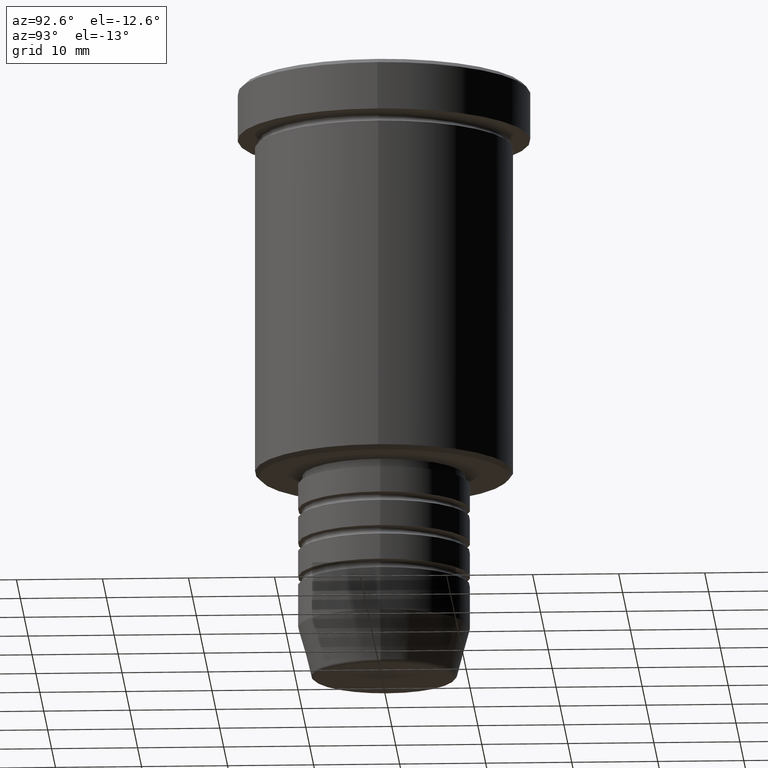
[diagram: clean part render]
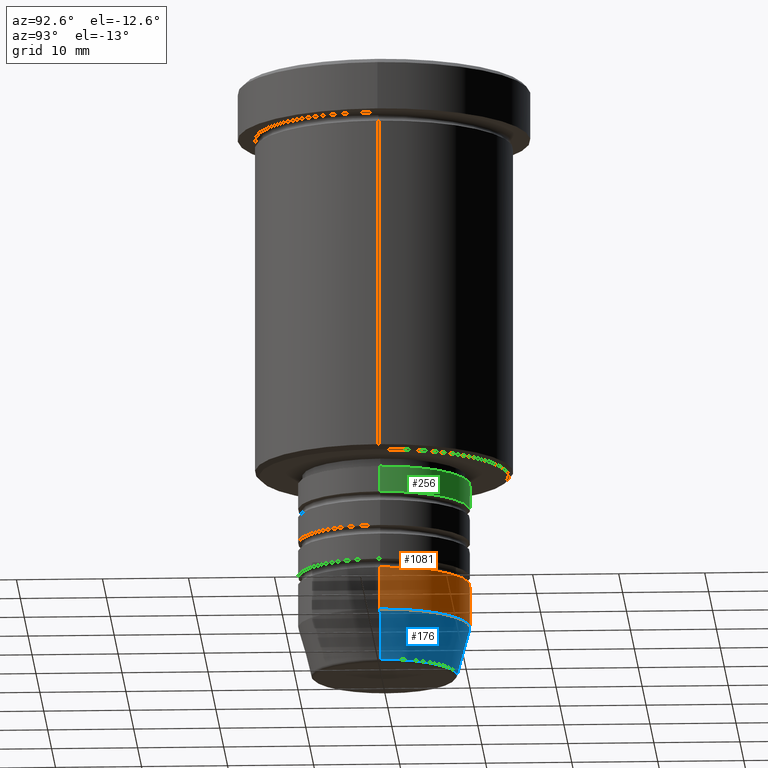
[diagram: same view with three faces highlighted in distinct colors, each labeled with its STEP entity id]
A machine part, auxiliary view with three faces highlighted in distinct colors.
Their STEP definitions:

[orange] entity #1081 — the highlighted cylindrical surface (partial cylindrical patch) has radius 10 mm, axis along (-0, -0, 1).
#8 = VERTEX_POINT ( 'NONE', #234 ) ;
#81 = ORIENTED_EDGE ( 'NONE', *, *, #139, .T. ) ;
#84 = LINE ( 'NONE', #439, #1108 ) ;
#92 = CYLINDRICAL_SURFACE ( 'NONE', #147, 10.00000000000000178 ) ;
#139 = EDGE_CURVE ( 'NONE', #1054, #441, #999, .T. ) ;
#141 = VERTEX_POINT ( 'NONE', #626 ) ;
#147 = AXIS2_PLACEMENT_3D ( 'NONE', #1182, #1088, #365 ) ;
#177 = CARTESIAN_POINT ( 'NONE',  ( -10.00000000000000178, 1.224646799147353454E-15, 0.000000000000000000 ) ) ;
#193 = EDGE_CURVE ( 'NONE', #8, #1054, #630, .T. ) ;
#234 = CARTESIAN_POINT ( 'NONE',  ( 10.00000000000000178, 0.000000000000000000, -64.00000000000000000 ) ) ;
#365 = DIRECTION ( 'NONE',  ( 1.000000000000000000, 0.000000000000000000, 0.000000000000000000 ) ) ;
#372 = CARTESIAN_POINT ( 'NONE',  ( -10.00000000000000178, 1.224646799147353454E-15, -64.00000000000000000 ) ) ;
#439 = CARTESIAN_POINT ( 'NONE',  ( 10.00000000000000178, 0.000000000000000000, 0.000000000000000000 ) ) ;
#441 = VERTEX_POINT ( 'NONE', #858 ) ;
#538 = DIRECTION ( 'NONE',  ( -0.000000000000000000, -0.000000000000000000, 1.000000000000000000 ) ) ;
#554 = CARTESIAN_POINT ( 'NONE',  ( 0.000000000000000000, 0.000000000000000000, -59.00000000000000711 ) ) ;
#559 = ORIENTED_EDGE ( 'NONE', *, *, #193, .T. ) ;
#603 = CARTESIAN_POINT ( 'NONE',  ( 0.000000000000000000, 0.000000000000000000, -64.00000000000000000 ) ) ;
#626 = CARTESIAN_POINT ( 'NONE',  ( 10.00000000000000000, 0.000000000000000000, -59.00000000000000711 ) ) ;
#630 = CIRCLE ( 'NONE', #1072, 10.00000000000000178 ) ;
#636 = ORIENTED_EDGE ( 'NONE', *, *, #720, .F. ) ;
#672 = EDGE_CURVE ( 'NONE', #8, #141, #84, .T. ) ;
#720 = EDGE_CURVE ( 'NONE', #141, #441, #850, .T. ) ;
#750 = AXIS2_PLACEMENT_3D ( 'NONE', #554, #847, #1051 ) ;
#770 = EDGE_LOOP ( 'NONE', ( #559, #81, #636, #930 ) ) ;
#788 = VECTOR ( 'NONE', #538, 1000.000000000000000 ) ;
#811 = FACE_OUTER_BOUND ( 'NONE', #770, .T. ) ;
#822 = DIRECTION ( 'NONE',  ( -0.000000000000000000, -0.000000000000000000, 1.000000000000000000 ) ) ;
#847 = DIRECTION ( 'NONE',  ( -0.000000000000000000, -0.000000000000000000, 1.000000000000000000 ) ) ;
#850 = CIRCLE ( 'NONE', #750, 10.00000000000000000 ) ;
#858 = CARTESIAN_POINT ( 'NONE',  ( -10.00000000000000000, 1.224646799147353256E-15, -59.00000000000000711 ) ) ;
#930 = ORIENTED_EDGE ( 'NONE', *, *, #672, .F. ) ;
#977 = DIRECTION ( 'NONE',  ( 1.000000000000000000, 0.000000000000000000, 0.000000000000000000 ) ) ;
#999 = LINE ( 'NONE', #177, #788 ) ;
#1051 = DIRECTION ( 'NONE',  ( 1.000000000000000000, 0.000000000000000000, 0.000000000000000000 ) ) ;
#1054 = VERTEX_POINT ( 'NONE', #372 ) ;
#1072 = AXIS2_PLACEMENT_3D ( 'NONE', #603, #822, #977 ) ;
#1081 = ADVANCED_FACE ( 'NONE', ( #811 ), #92, .T. ) ;
#1088 = DIRECTION ( 'NONE',  ( -0.000000000000000000, -0.000000000000000000, 1.000000000000000000 ) ) ;
#1108 = VECTOR ( 'NONE', #1179, 1000.000000000000000 ) ;
#1179 = DIRECTION ( 'NONE',  ( -0.000000000000000000, -0.000000000000000000, 1.000000000000000000 ) ) ;
#1182 = CARTESIAN_POINT ( 'NONE',  ( 0.000000000000000000, 0.000000000000000000, 0.000000000000000000 ) ) ;

[blue] entity #176 — the highlighted conical surface has half-angle 15 deg.
#8 = VERTEX_POINT ( 'NONE', #234 ) ;
#39 = CARTESIAN_POINT ( 'NONE',  ( 10.00000000000000178, 0.000000000000000000, -64.00000000000000000 ) ) ;
#115 = DIRECTION ( 'NONE',  ( 1.000000000000000000, 0.000000000000000000, 0.000000000000000000 ) ) ;
#158 = DIRECTION ( 'NONE',  ( -0.2588190451025214056, 3.169619151431772953E-17, 0.9659258262890680902 ) ) ;
#176 = ADVANCED_FACE ( 'NONE', ( #343 ), #246, .T. ) ;
#183 = DIRECTION ( 'NONE',  ( -0.000000000000000000, -0.000000000000000000, 1.000000000000000000 ) ) ;
#193 = EDGE_CURVE ( 'NONE', #8, #1054, #630, .T. ) ;
#234 = CARTESIAN_POINT ( 'NONE',  ( 10.00000000000000178, 0.000000000000000000, -64.00000000000000000 ) ) ;
#246 = CONICAL_SURFACE ( 'NONE', #1160, 10.00000000000000178, 0.2617993877991501295 ) ;
#260 = DIRECTION ( 'NONE',  ( 0.2588190451025214056, 0.000000000000000000, 0.9659258262890680902 ) ) ;
#290 = CARTESIAN_POINT ( 'NONE',  ( 8.491604264568312743, 0.000000000000000000, -69.62940952255127058 ) ) ;
#305 = CIRCLE ( 'NONE', #430, 8.491604264568312743 ) ;
#310 = EDGE_CURVE ( 'NONE', #1177, #411, #305, .T. ) ;
#316 = LINE ( 'NONE', #670, #791 ) ;
#339 = EDGE_LOOP ( 'NONE', ( #1063, #693, #988, #805 ) ) ;
#343 = FACE_OUTER_BOUND ( 'NONE', #339, .T. ) ;
#372 = CARTESIAN_POINT ( 'NONE',  ( -10.00000000000000178, 1.224646799147353454E-15, -64.00000000000000000 ) ) ;
#411 = VERTEX_POINT ( 'NONE', #1135 ) ;
#430 = AXIS2_PLACEMENT_3D ( 'NONE', #565, #934, #115 ) ;
#477 = EDGE_CURVE ( 'NONE', #1177, #8, #698, .T. ) ;
#517 = EDGE_CURVE ( 'NONE', #411, #1054, #316, .T. ) ;
#565 = CARTESIAN_POINT ( 'NONE',  ( 0.000000000000000000, 0.000000000000000000, -69.62940952255127058 ) ) ;
#603 = CARTESIAN_POINT ( 'NONE',  ( 0.000000000000000000, 0.000000000000000000, -64.00000000000000000 ) ) ;
#615 = CARTESIAN_POINT ( 'NONE',  ( 0.000000000000000000, 0.000000000000000000, -64.00000000000000000 ) ) ;
#630 = CIRCLE ( 'NONE', #1072, 10.00000000000000178 ) ;
#670 = CARTESIAN_POINT ( 'NONE',  ( -10.00000000000000178, 1.224646799147353454E-15, -64.00000000000000000 ) ) ;
#693 = ORIENTED_EDGE ( 'NONE', *, *, #517, .T. ) ;
#698 = LINE ( 'NONE', #39, #731 ) ;
#731 = VECTOR ( 'NONE', #260, 1000.000000000000000 ) ;
#791 = VECTOR ( 'NONE', #158, 1000.000000000000000 ) ;
#805 = ORIENTED_EDGE ( 'NONE', *, *, #477, .F. ) ;
#822 = DIRECTION ( 'NONE',  ( -0.000000000000000000, -0.000000000000000000, 1.000000000000000000 ) ) ;
#886 = DIRECTION ( 'NONE',  ( 1.000000000000000000, 0.000000000000000000, 0.000000000000000000 ) ) ;
#934 = DIRECTION ( 'NONE',  ( -0.000000000000000000, -0.000000000000000000, 1.000000000000000000 ) ) ;
#977 = DIRECTION ( 'NONE',  ( 1.000000000000000000, 0.000000000000000000, 0.000000000000000000 ) ) ;
#988 = ORIENTED_EDGE ( 'NONE', *, *, #193, .F. ) ;
#1054 = VERTEX_POINT ( 'NONE', #372 ) ;
#1063 = ORIENTED_EDGE ( 'NONE', *, *, #310, .T. ) ;
#1072 = AXIS2_PLACEMENT_3D ( 'NONE', #603, #822, #977 ) ;
#1135 = CARTESIAN_POINT ( 'NONE',  ( -8.491604264568312743, 1.132284198685156781E-15, -69.62940952255127058 ) ) ;
#1160 = AXIS2_PLACEMENT_3D ( 'NONE', #615, #183, #886 ) ;
#1177 = VERTEX_POINT ( 'NONE', #290 ) ;

[green] entity #256 — the highlighted cylindrical surface (partial cylindrical patch) has radius 10 mm, axis along (-0, -0, 1).
#17 = DIRECTION ( 'NONE',  ( -0.000000000000000000, -0.000000000000000000, 1.000000000000000000 ) ) ;
#31 = DIRECTION ( 'NONE',  ( -0.000000000000000000, -0.000000000000000000, 1.000000000000000000 ) ) ;
#59 = ORIENTED_EDGE ( 'NONE', *, *, #539, .T. ) ;
#62 = VERTEX_POINT ( 'NONE', #972 ) ;
#99 = ORIENTED_EDGE ( 'NONE', *, *, #497, .F. ) ;
#110 = VECTOR ( 'NONE', #944, 1000.000000000000000 ) ;
#209 = ORIENTED_EDGE ( 'NONE', *, *, #690, .T. ) ;
#210 = CARTESIAN_POINT ( 'NONE',  ( -10.00000000000000000, 1.224646799147353256E-15, 0.000000000000000000 ) ) ;
#217 = LINE ( 'NONE', #573, #110 ) ;
#249 = CARTESIAN_POINT ( 'NONE',  ( -10.00000000000000178, 1.224646799147353454E-15, -49.99999999999999289 ) ) ;
#256 = ADVANCED_FACE ( 'NONE', ( #381 ), #457, .T. ) ;
#335 = AXIS2_PLACEMENT_3D ( 'NONE', #1178, #1014, #610 ) ;
#355 = AXIS2_PLACEMENT_3D ( 'NONE', #1130, #363, #646 ) ;
#363 = DIRECTION ( 'NONE',  ( -0.000000000000000000, -0.000000000000000000, 1.000000000000000000 ) ) ;
#381 = FACE_OUTER_BOUND ( 'NONE', #728, .T. ) ;
#404 = LINE ( 'NONE', #210, #653 ) ;
#421 = VERTEX_POINT ( 'NONE', #580 ) ;
#455 = CARTESIAN_POINT ( 'NONE',  ( 0.000000000000000000, 0.000000000000000000, -49.99999999999999289 ) ) ;
#457 = CYLINDRICAL_SURFACE ( 'NONE', #355, 10.00000000000000000 ) ;
#495 = VERTEX_POINT ( 'NONE', #1037 ) ;
#497 = EDGE_CURVE ( 'NONE', #495, #421, #217, .T. ) ;
#530 = DIRECTION ( 'NONE',  ( 1.000000000000000000, 0.000000000000000000, 0.000000000000000000 ) ) ;
#539 = EDGE_CURVE ( 'NONE', #495, #986, #632, .T. ) ;
#573 = CARTESIAN_POINT ( 'NONE',  ( 10.00000000000000000, 0.000000000000000000, 0.000000000000000000 ) ) ;
#580 = CARTESIAN_POINT ( 'NONE',  ( 9.999999999999998224, 0.000000000000000000, -47.00000000000000000 ) ) ;
#610 = DIRECTION ( 'NONE',  ( 1.000000000000000000, 0.000000000000000000, 0.000000000000000000 ) ) ;
#632 = CIRCLE ( 'NONE', #945, 10.00000000000000178 ) ;
#646 = DIRECTION ( 'NONE',  ( 1.000000000000000000, 0.000000000000000000, 0.000000000000000000 ) ) ;
#653 = VECTOR ( 'NONE', #31, 1000.000000000000000 ) ;
#690 = EDGE_CURVE ( 'NONE', #986, #62, #404, .T. ) ;
#728 = EDGE_LOOP ( 'NONE', ( #59, #209, #968, #99 ) ) ;
#944 = DIRECTION ( 'NONE',  ( -0.000000000000000000, -0.000000000000000000, 1.000000000000000000 ) ) ;
#945 = AXIS2_PLACEMENT_3D ( 'NONE', #455, #17, #530 ) ;
#968 = ORIENTED_EDGE ( 'NONE', *, *, #1012, .F. ) ;
#972 = CARTESIAN_POINT ( 'NONE',  ( -9.999999999999998224, 1.224646799147353256E-15, -47.00000000000000000 ) ) ;
#986 = VERTEX_POINT ( 'NONE', #249 ) ;
#1012 = EDGE_CURVE ( 'NONE', #421, #62, #1166, .T. ) ;
#1014 = DIRECTION ( 'NONE',  ( -0.000000000000000000, -0.000000000000000000, 1.000000000000000000 ) ) ;
#1037 = CARTESIAN_POINT ( 'NONE',  ( 10.00000000000000178, 0.000000000000000000, -49.99999999999999289 ) ) ;
#1130 = CARTESIAN_POINT ( 'NONE',  ( 0.000000000000000000, 0.000000000000000000, 0.000000000000000000 ) ) ;
#1166 = CIRCLE ( 'NONE', #335, 9.999999999999998224 ) ;
#1178 = CARTESIAN_POINT ( 'NONE',  ( 0.000000000000000000, 0.000000000000000000, -47.00000000000000000 ) ) ;